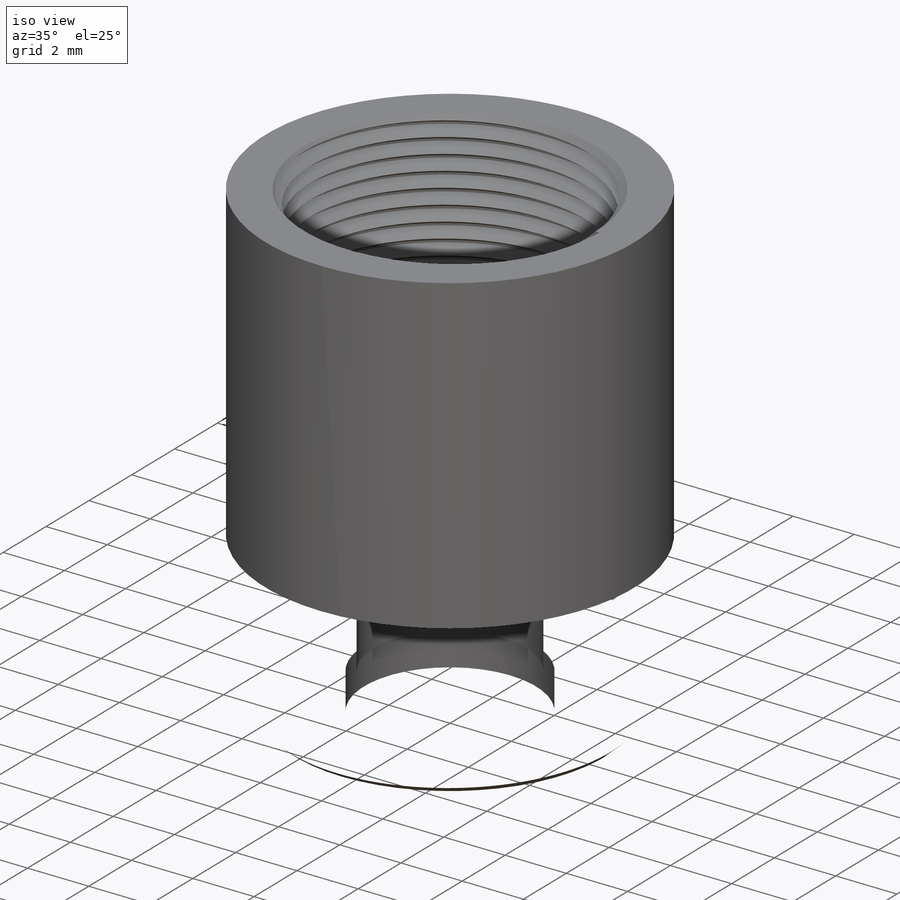
[diagram: iso view]
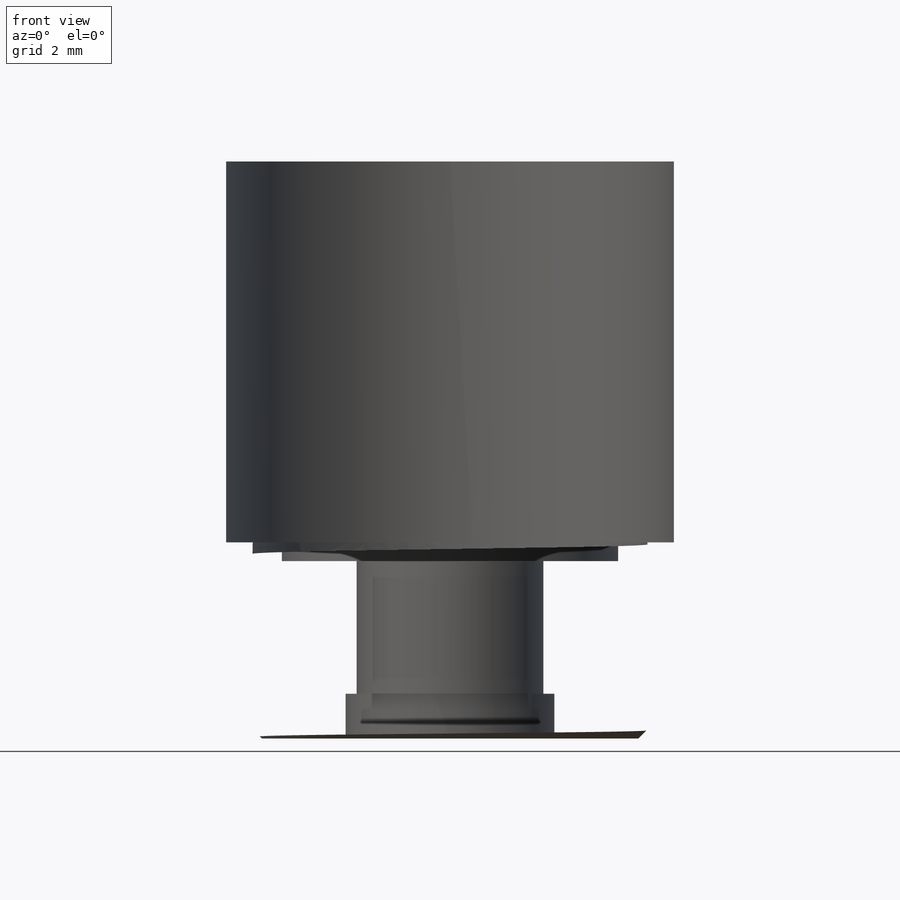
[diagram: front view]
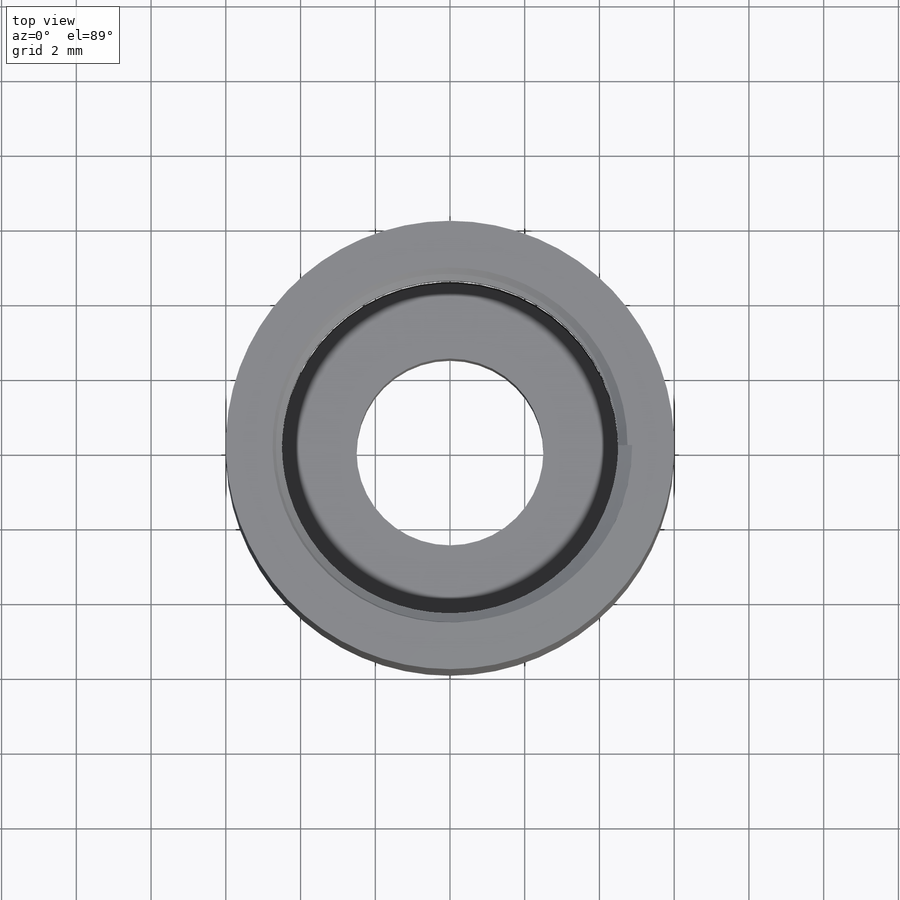
[diagram: top view]
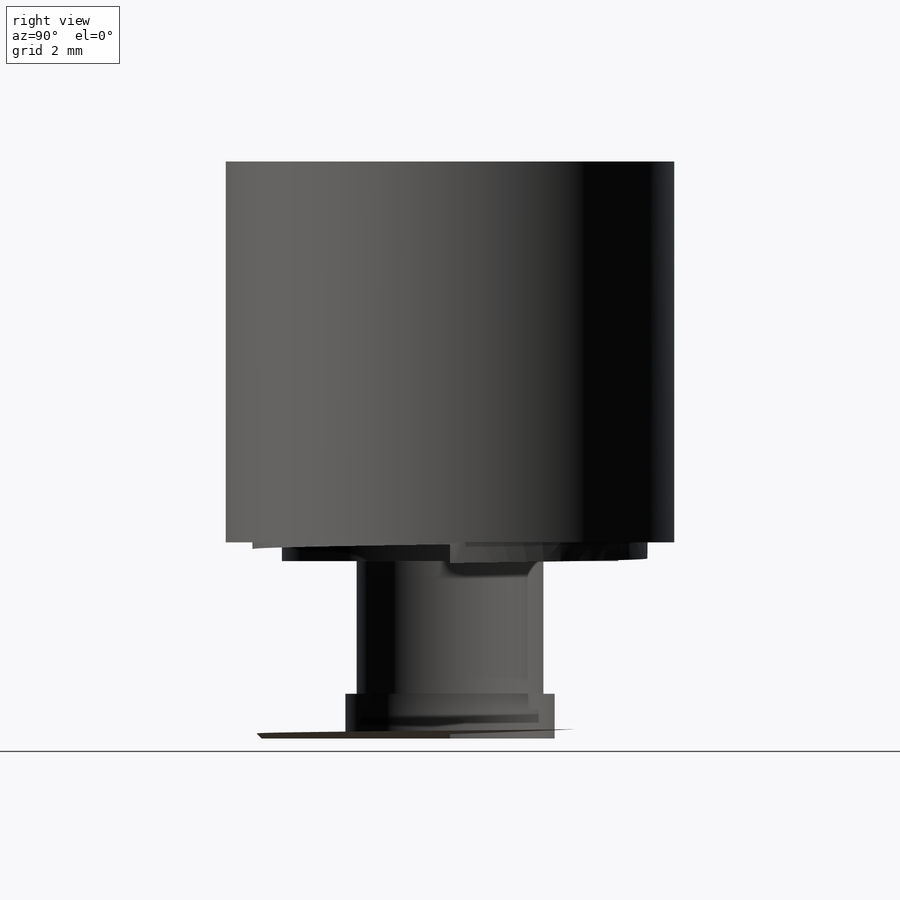
[diagram: right view]
SOLIDWORKS PART (.sldprt)
format: sldprt  version: not decoded by parser v0  size: 1,192,448 bytes
history: native  units: mm
features: sketch x10, extrude x3, thread x2, chamfer x2, helix x2, sweep x2, material x1, cut_extrude x1, cut_revolve x1 (+13 scaffold rows collapsed)
feature tree (37):
  scaffold x13  (default folders/planes/origin — collapsed)
  material  "Material <not specified>"
  sketch  "Sketch1"  dims[D1=12.0mm D2=1.5mm]
  extrude  "Boss-Extrude1"  [1 undecoded]
  thread  "Cosmetic Thread2"  Diameter=5mm  [1 undecoded]
  sketch  "Sketch2"  dims[D1=10.575mm]
  extrude  "Boss-Extrude2"  [1 undecoded]
  thread  "Cosmetic Thread1"  Diameter=10mm  [1 undecoded]
  sketch  "Sketch3"  dims[D1=5.0mm]
  extrude  "Boss-Extrude3"  Depth=4.75mm
  chamfer  "Chamfer1"  Distance=0.25mm Angle=45deg
  sketch  "Sketch4"  dims[D1=5.6mm]
  cut_extrude  "Cut-Extrude1"  Depth=1.2mm
  chamfer  "Chamfer2"  Distance=0.25mm Angle=45deg
  sketch  "Sketch8"
  sketch  "Sketch11"
  helix  "Helix/Spiral4"  Pitch=7.5mm
  sketch  "Sketch12"  dims[D1=0.25mm D2=0.25mm D3=30.0deg D4=0.125mm]
  sweep  "Cut-Sweep4"
  sketch  "Sketch13"  dims[D1=~0.717962mm]
  cut_revolve  "Cut-Revolve2"  Angle=360deg
  sketch  "Sketch14"
  helix  "Helix/Spiral5"  Pitch=5mm
  sketch  "Sketch15"  dims[D1=0.25mm D2=0.25mm D3=30.0deg D4=0.125mm]
  sweep  "Cut-Sweep5"
decode coverage: 16 of 23 modeling features carry decoded parameters
note: ~ marks probable driven/reference dimensions
note: 4 parameter values undecoded
note: suppression state not decoded; provenance and decode notes live in map.json
